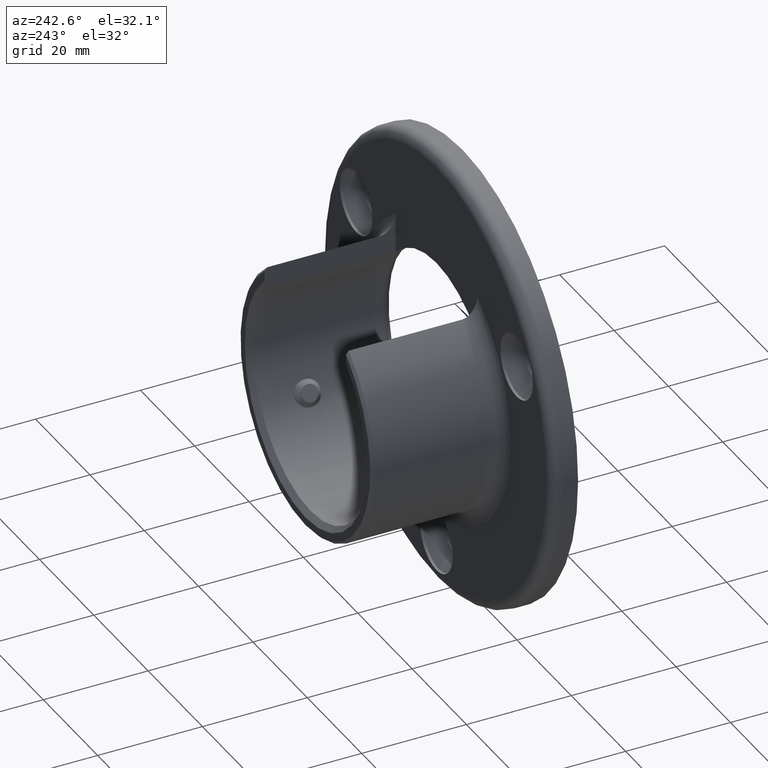
[diagram: clean part render]
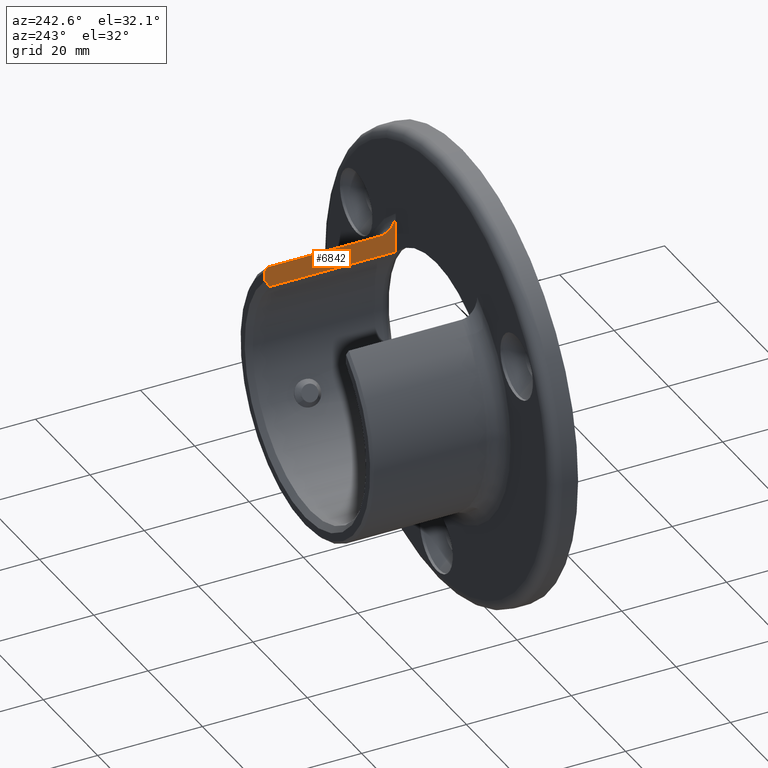
[diagram: same view with one face highlighted and labeled with its STEP entity id]
A machine part, auxiliary view. The second image highlights one B-rep face of the part: STEP entity #6842.
In plain terms, the highlighted planar face has unit normal (1, 0, 0).
Its self-contained STEP definition (entity closure, byte-faithful):
#179 = CARTESIAN_POINT ( 'NONE',  ( 15.00000000000000355, 29.49999999999998579, 19.18130600350247050 ) ) ;
#517 = CARTESIAN_POINT ( 'NONE',  ( 15.00000000000000533, 5.908942776005998709, 20.23767699112590535 ) ) ;
#676 = LINE ( 'NONE', #2085, #1649 ) ;
#690 = CARTESIAN_POINT ( 'NONE',  ( 15.00000000000000355, 5.000000000000000000, 15.19284371011562662 ) ) ;
#1022 = CARTESIAN_POINT ( 'NONE',  ( 15.00000000000000355, 29.66233896812011395, 16.11324033468321204 ) ) ;
#1092 = CARTESIAN_POINT ( 'NONE',  ( 15.00000000000000355, 30.00000000000000355, 16.56872052996250844 ) ) ;
#1126 = EDGE_CURVE ( 'NONE', #3291, #2345, #9439, .T. ) ;
#1506 = CARTESIAN_POINT ( 'NONE',  ( 15.00000000000000355, 30.00000000000000355, 18.54245129425986249 ) ) ;
#1649 = VECTOR ( 'NONE', #5470, 1000.000000000000000 ) ;
#1882 = CARTESIAN_POINT ( 'NONE',  ( 15.00000000000000355, 29.83402122363861864, 18.75593945466530243 ) ) ;
#2085 = CARTESIAN_POINT ( 'NONE',  ( 15.00000000000000355, 30.00000000000000355, 19.18130600350247050 ) ) ;
#2105 = VECTOR ( 'NONE', #4857, 1000.000000000000000 ) ;
#2345 = VERTEX_POINT ( 'NONE', #18216 ) ;
#2488 = ORIENTED_EDGE ( 'NONE', *, *, #2594, .F. ) ;
#2594 = EDGE_CURVE ( 'NONE', #7416, #9095, #10114, .T. ) ;
#2614 = CARTESIAN_POINT ( 'NONE',  ( 15.00000000000000533, 6.935408139764223101, 19.41871214534407031 ) ) ;
#2633 = EDGE_LOOP ( 'NONE', ( #2488, #19882, #9822, #4870, #6551, #15815, #18822 ) ) ;
#2957 = LINE ( 'NONE', #16911, #3213 ) ;
#3213 = VECTOR ( 'NONE', #17191, 1000.000000000000000 ) ;
#3291 = VERTEX_POINT ( 'NONE', #13782 ) ;
#3835 = CARTESIAN_POINT ( 'NONE',  ( 15.00000000000000533, 5.262238312063248102, 21.37122577652108646 ) ) ;
#3986 = VERTEX_POINT ( 'NONE', #179 ) ;
#4063 = DIRECTION ( 'NONE',  ( 0.000000000000000000, 0.000000000000000000, -1.000000000000000000 ) ) ;
#4105 = CARTESIAN_POINT ( 'NONE',  ( 15.00000000000000533, 7.777729214869189889, 19.18130600350249182 ) ) ;
#4264 = LINE ( 'NONE', #690, #10813 ) ;
#4336 = DIRECTION ( 'NONE',  ( 1.000000000000000000, 0.000000000000000000, 0.000000000000000000 ) ) ;
#4401 = VERTEX_POINT ( 'NONE', #20147 ) ;
#4519 = CARTESIAN_POINT ( 'NONE',  ( 15.00000000000000355, 30.00000000000000355, 16.56872052996250844 ) ) ;
#4801 = CARTESIAN_POINT ( 'NONE',  ( 15.00000000000000355, 29.66733541208325420, 18.96887952516551223 ) ) ;
#4857 = DIRECTION ( 'NONE',  ( 0.000000000000000000, 0.000000000000000000, 1.000000000000000000 ) ) ;
#4870 = ORIENTED_EDGE ( 'NONE', *, *, #5979, .T. ) ;
#5386 = CARTESIAN_POINT ( 'NONE',  ( 15.00000000000000355, 5.344779068767029351, 21.16518720974688250 ) ) ;
#5470 = DIRECTION ( 'NONE',  ( -0.000000000000000000, -1.000000000000000000, -0.000000000000000000 ) ) ;
#5568 = CARTESIAN_POINT ( 'NONE',  ( 15.00000000000000355, 28.99999999999997158, 15.19284371011562662 ) ) ;
#5665 = CARTESIAN_POINT ( 'NONE',  ( 15.00000000000000533, 7.556587484645469033, 19.21330745783425442 ) ) ;
#5794 = B_SPLINE_CURVE_WITH_KNOTS ( 'NONE', 3,
 ( #1092, #1022, #7307, #14942 ),
 .UNSPECIFIED., .F., .F.,
 ( 4, 4 ),
 ( 0.000000000000000000, 0.001700893007626299311 ),
 .UNSPECIFIED. ) ;
#5941 = FACE_OUTER_BOUND ( 'NONE', #2633, .T. ) ;
#5979 = EDGE_CURVE ( 'NONE', #4401, #3291, #4264, .T. ) ;
#6551 = ORIENTED_EDGE ( 'NONE', *, *, #1126, .T. ) ;
#6842 = ADVANCED_FACE ( 'NONE', ( #5941 ), #19666, .F. ) ;
#6936 = CARTESIAN_POINT ( 'NONE',  ( 15.00000000000000355, 5.651240881055695553, 20.58948036648342850 ) ) ;
#7060 = EDGE_CURVE ( 'NONE', #3986, #9095, #15052, .T. ) ;
#7307 = CARTESIAN_POINT ( 'NONE',  ( 15.00000000000000355, 29.32873842939328313, 15.65480893541931451 ) ) ;
#7416 = VERTEX_POINT ( 'NONE', #4519 ) ;
#8081 = EDGE_CURVE ( 'NONE', #7416, #15604, #5794, .T. ) ;
#8234 = CARTESIAN_POINT ( 'NONE',  ( 15.00000000000000355, 5.065915106816810898, 21.99837821047765019 ) ) ;
#8627 = CARTESIAN_POINT ( 'NONE',  ( 15.00000000000000355, 7.137408363741516659, 19.33176807364670680 ) ) ;
#9095 = VERTEX_POINT ( 'NONE', #1506 ) ;
#9439 = B_SPLINE_CURVE_WITH_KNOTS ( 'NONE', 3,
 ( #9796, #17787, #8234, #3835, #5386, #16263, #6936, #517, #11841, #15056, #17993, #2614, #8627, #5665, #4105, #16603 ),
 .UNSPECIFIED., .F., .F.,
 ( 4, 2, 2, 2, 2, 2, 2, 4 ),
 ( 0.000000000000000000, 0.001303902921024522937, 0.001955854381536789068, 0.002607805842049055415, 0.003259757302561322196, 0.003911708763073587676, 0.004563660223585854457, 0.005215611684098120371 ),
 .UNSPECIFIED. ) ;
#9543 = EDGE_CURVE ( 'NONE', #15604, #4401, #2957, .T. ) ;
#9796 = CARTESIAN_POINT ( 'NONE',  ( 15.00000000000000355, 5.000000000000000000, 22.86968517492096709 ) ) ;
#9822 = ORIENTED_EDGE ( 'NONE', *, *, #9543, .T. ) ;
#10114 = LINE ( 'NONE', #14027, #2105 ) ;
#10378 = CARTESIAN_POINT ( 'NONE',  ( 15.00000000000000355, 30.00000000000000355, 15.19284371011562662 ) ) ;
#10813 = VECTOR ( 'NONE', #11610, 1000.000000000000000 ) ;
#11610 = DIRECTION ( 'NONE',  ( 0.000000000000000000, 0.000000000000000000, 1.000000000000000000 ) ) ;
#11841 = CARTESIAN_POINT ( 'NONE',  ( 15.00000000000000533, 6.056358760817493803, 20.07019500471366413 ) ) ;
#12739 = CARTESIAN_POINT ( 'NONE',  ( 15.00000000000000355, 30.00000000000000355, 18.54245129425986249 ) ) ;
#13782 = CARTESIAN_POINT ( 'NONE',  ( 15.00000000000000355, 5.000000000000000000, 22.86968517492096709 ) ) ;
#13878 = EDGE_CURVE ( 'NONE', #3986, #2345, #676, .T. ) ;
#14027 = CARTESIAN_POINT ( 'NONE',  ( 15.00000000000000355, 30.00000000000000355, 15.19284371011562662 ) ) ;
#14942 = CARTESIAN_POINT ( 'NONE',  ( 15.00000000000000355, 28.99999999999997158, 15.19284371011562662 ) ) ;
#15052 = B_SPLINE_CURVE_WITH_KNOTS ( 'NONE', 3,
 ( #15683, #4801, #1882, #12739 ),
 .UNSPECIFIED., .F., .F.,
 ( 4, 4 ),
 ( 0.000000000000000000, 0.0008112554095483603782 ),
 .UNSPECIFIED. ) ;
#15056 = CARTESIAN_POINT ( 'NONE',  ( 15.00000000000000355, 6.378206385147391799, 19.77253035281239590 ) ) ;
#15604 = VERTEX_POINT ( 'NONE', #5568 ) ;
#15683 = CARTESIAN_POINT ( 'NONE',  ( 15.00000000000000355, 29.49999999999998579, 19.18130600350247050 ) ) ;
#15775 = AXIS2_PLACEMENT_3D ( 'NONE', #10378, #4336, #4063 ) ;
#15815 = ORIENTED_EDGE ( 'NONE', *, *, #13878, .F. ) ;
#16263 = CARTESIAN_POINT ( 'NONE',  ( 15.00000000000000178, 5.539029650116550130, 20.77535490648834227 ) ) ;
#16603 = CARTESIAN_POINT ( 'NONE',  ( 15.00000000000000355, 8.000000000000000000, 19.18130600350247050 ) ) ;
#16911 = CARTESIAN_POINT ( 'NONE',  ( 15.00000000000000355, 30.00000000000000355, 15.19284371011562662 ) ) ;
#17191 = DIRECTION ( 'NONE',  ( -0.000000000000000000, -1.000000000000000000, -0.000000000000000000 ) ) ;
#17787 = CARTESIAN_POINT ( 'NONE',  ( 15.00000000000000888, 5.000000000000000000, 22.42812442886998170 ) ) ;
#17993 = CARTESIAN_POINT ( 'NONE',  ( 15.00000000000000178, 6.552997198166152337, 19.64096486946659326 ) ) ;
#18216 = CARTESIAN_POINT ( 'NONE',  ( 15.00000000000000355, 8.000000000000000000, 19.18130600350247050 ) ) ;
#18822 = ORIENTED_EDGE ( 'NONE', *, *, #7060, .T. ) ;
#19666 = PLANE ( 'NONE',  #15775 ) ;
#19882 = ORIENTED_EDGE ( 'NONE', *, *, #8081, .T. ) ;
#20147 = CARTESIAN_POINT ( 'NONE',  ( 15.00000000000000355, 5.000000000000000000, 15.19284371011562662 ) ) ;